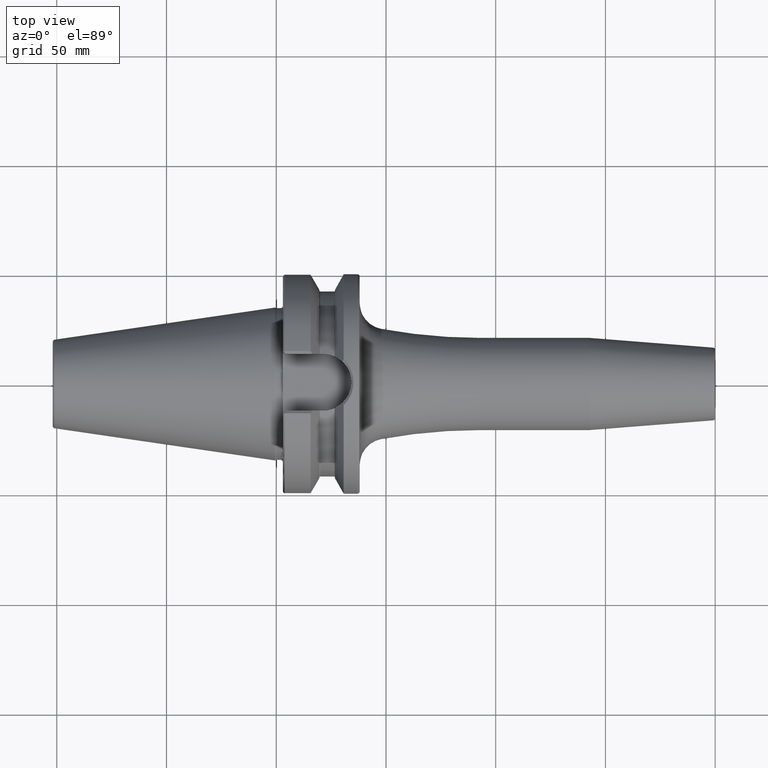
[diagram: clean part render]
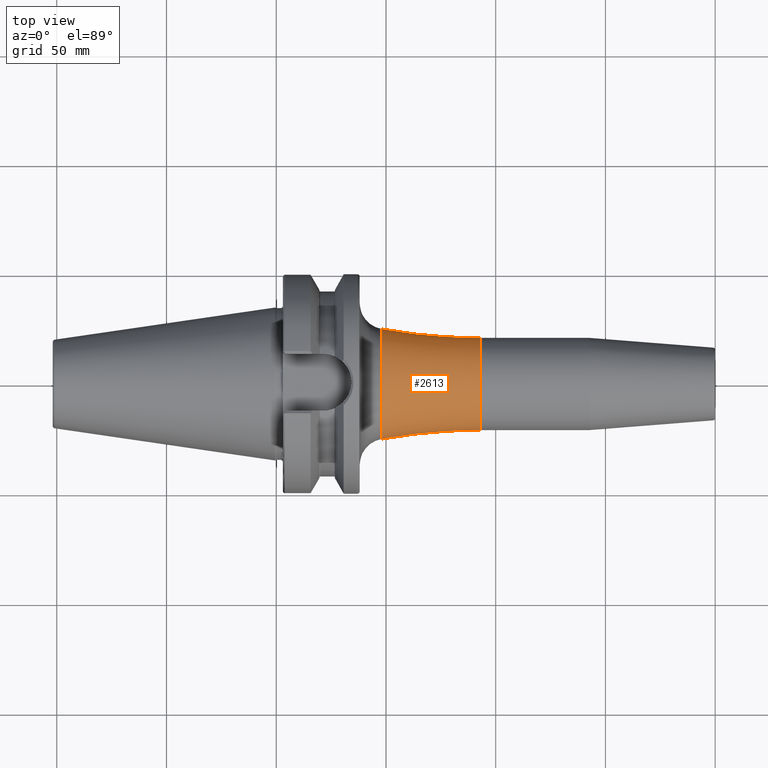
[diagram: same view with one face highlighted and labeled with its STEP entity id]
A machine part, top view. The second image highlights one B-rep face of the part: STEP entity #2613.
In plain terms, the highlighted toroidal blend (fillet) surface has major radius 271 mm and minor (blend) radius 250 mm.
Its self-contained STEP definition (entity closure, byte-faithful):
#854=CARTESIAN_POINT('',(4.783193277311E1,0.E0,0.E0));
#855=DIRECTION('',(1.E0,0.E0,0.E0));
#856=DIRECTION('',(0.E0,1.E0,0.E0));
#857=AXIS2_PLACEMENT_3D('',#854,#855,#856);
#864=CARTESIAN_POINT('',(9.3E1,-2.71E2,-6.637585651379E-14));
#865=DIRECTION('',(0.E0,0.E0,1.E0));
#866=DIRECTION('',(0.E0,1.E0,0.E0));
#867=AXIS2_PLACEMENT_3D('',#864,#865,#866);
#869=CARTESIAN_POINT('',(9.3E1,2.71E2,3.318792825689E-14));
#870=DIRECTION('',(0.E0,0.E0,-1.E0));
#871=DIRECTION('',(0.E0,-1.E0,0.E0));
#872=AXIS2_PLACEMENT_3D('',#869,#870,#871);
#892=CARTESIAN_POINT('',(9.3E1,0.E0,0.E0));
#893=DIRECTION('',(1.E0,0.E0,0.E0));
#894=DIRECTION('',(0.E0,1.E0,0.E0));
#895=AXIS2_PLACEMENT_3D('',#892,#893,#894);
#1435=CARTESIAN_POINT('',(4.783193277311E1,-2.511416123943E1,0.E0));
#1436=CARTESIAN_POINT('',(4.783193277311E1,2.511416123943E1,0.E0));
#1437=VERTEX_POINT('',#1435);
#1438=VERTEX_POINT('',#1436);
#1439=CARTESIAN_POINT('',(9.3E1,2.1E1,0.E0));
#1440=VERTEX_POINT('',#1439);
#1441=CARTESIAN_POINT('',(9.3E1,-2.1E1,0.E0));
#1442=VERTEX_POINT('',#1441);
#2599=CARTESIAN_POINT('',(9.3E1,0.E0,0.E0));
#2600=DIRECTION('',(1.E0,0.E0,0.E0));
#2601=DIRECTION('',(0.E0,-1.E0,0.E0));
#2602=AXIS2_PLACEMENT_3D('',#2599,#2600,#2601);
#2603=TOROIDAL_SURFACE('',#2602,2.71E2,2.5E2);
#2604=ORIENTED_EDGE('',*,*,#2593,.F.);
#2606=ORIENTED_EDGE('',*,*,#2605,.F.);
#2608=ORIENTED_EDGE('',*,*,#2607,.T.);
#2610=ORIENTED_EDGE('',*,*,#2609,.T.);
#2611=EDGE_LOOP('',(#2604,#2606,#2608,#2610));
#2612=FACE_OUTER_BOUND('',#2611,.F.);
#2613=ADVANCED_FACE('',(#2612),#2603,.F.);
#858=CIRCLE('',#857,2.511416123943E1);
#868=CIRCLE('',#867,2.5E2);
#873=CIRCLE('',#872,2.5E2);
#896=CIRCLE('',#895,2.1E1);
#2593=EDGE_CURVE('',#1438,#1437,#858,.T.);
#2605=EDGE_CURVE('',#1440,#1438,#873,.T.);
#2607=EDGE_CURVE('',#1440,#1442,#896,.T.);
#2609=EDGE_CURVE('',#1442,#1437,#868,.T.);